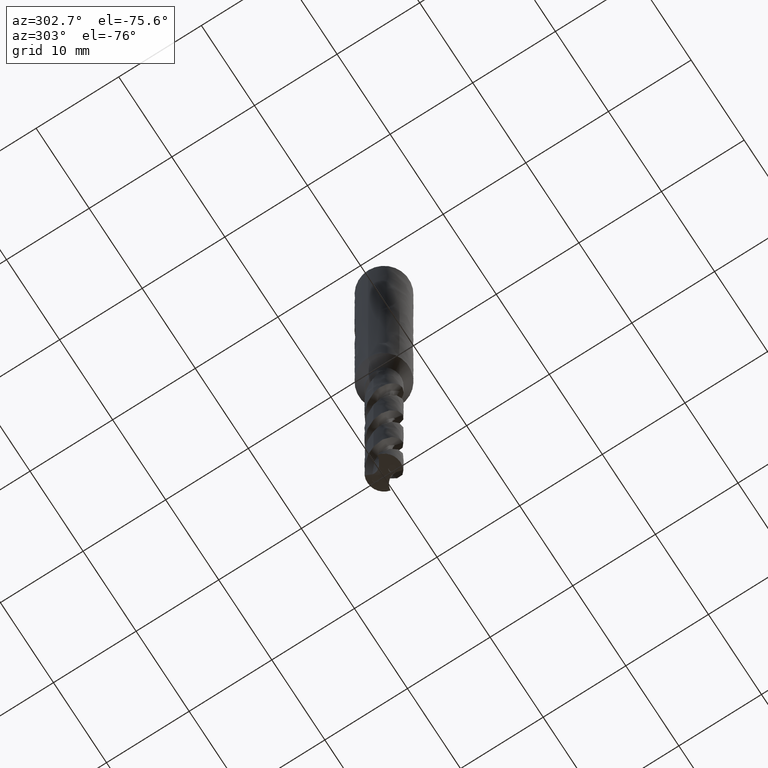
[diagram: clean part render]
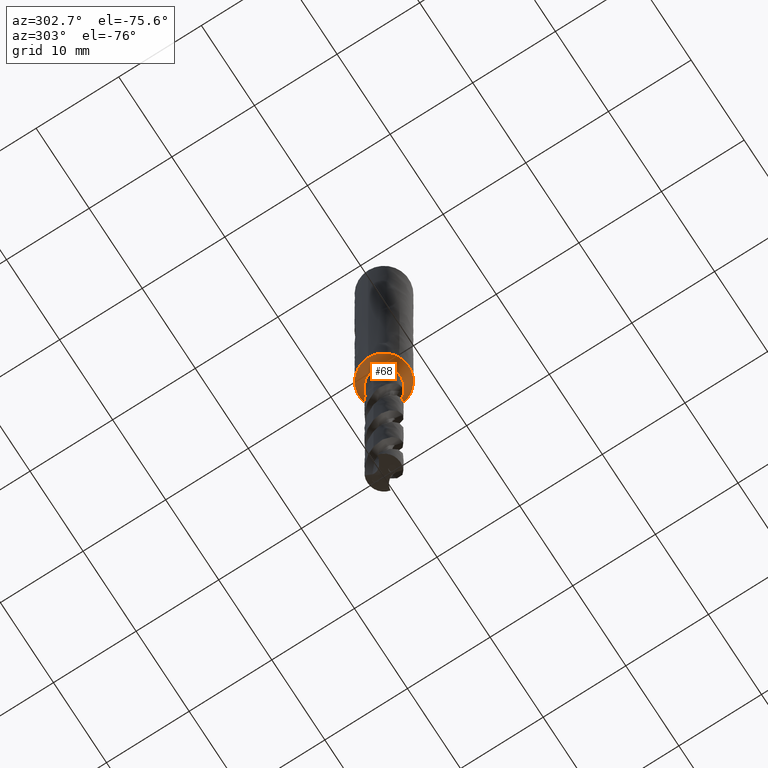
[diagram: same view with one face highlighted and labeled with its STEP entity id]
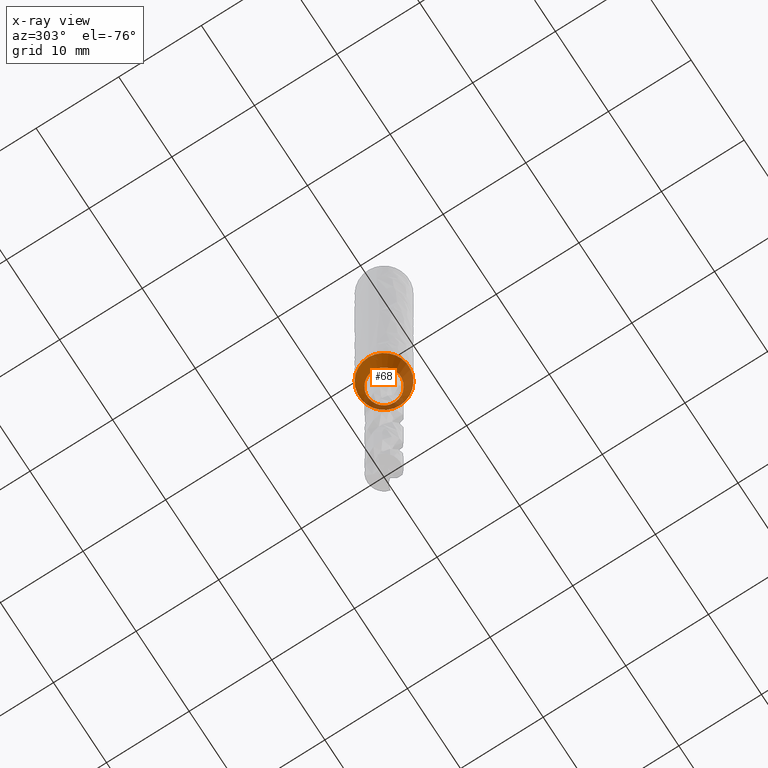
[diagram: x-ray of the same camera — body ghosted, the highlighted face saturated]
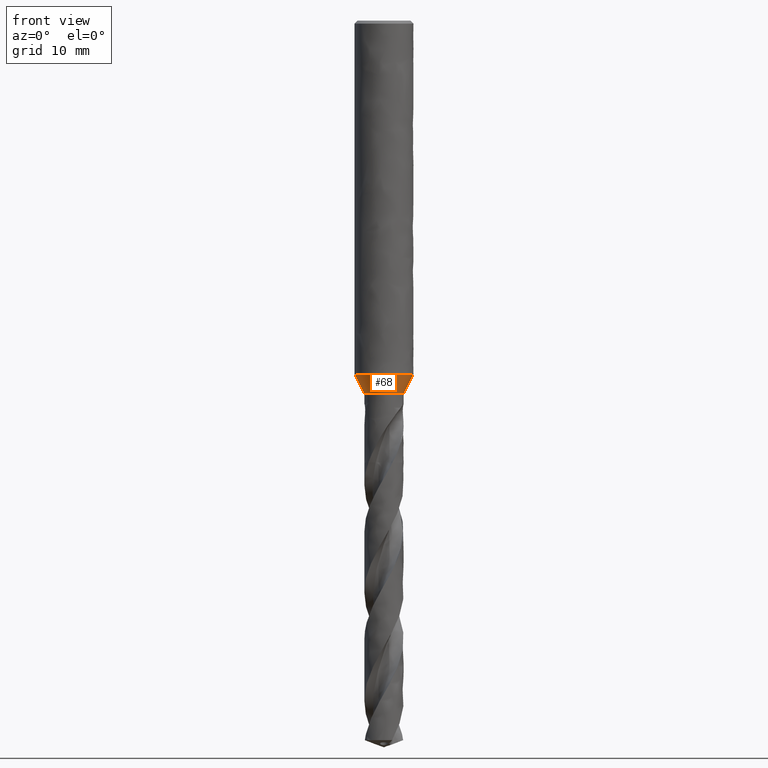
[diagram: same view with one face highlighted and labeled with its STEP entity id]
A machine part, auxiliary view. The second image highlights one B-rep face of the part: STEP entity #68.
The next image is the same camera in x-ray: the body ghosted, the highlighted face saturated — about 15% of this face is hidden behind the body in this view.
A second angle (front view) of the same face is appended — the face is thin or edge-on in the first view.
In plain terms, the highlighted face is a freeform B-spline surface patch.
Its self-contained STEP definition (entity closure, byte-faithful):
#68 = ADVANCED_FACE('', (#69), #96, .T.);
#69 = FACE_OUTER_BOUND('', #70, .T.);
#70 = EDGE_LOOP('', (#71, #81, #88, #89));
#71 = ORIENTED_EDGE('', *, *, #72, .F.);
#72 = EDGE_CURVE('', #73, #75, #77, .T.);
#73 = VERTEX_POINT('', #74);
#74 = CARTESIAN_POINT('', (-3., 2.38806125833734E-15, -36.));
#75 = VERTEX_POINT('', #76);
#76 = CARTESIAN_POINT('', (-2., 2.44929359829471E-15, -38.));
#77 = LINE('', #78, #79);
#78 = CARTESIAN_POINT('', (-3., 2.38806125833734E-15, -36.));
#79 = VECTOR('', #80, 2.23606797749979);
#80 = DIRECTION('', (1., 6.12323399573676E-17, -2.));
#81 = ORIENTED_EDGE('', *, *, #82, .T.);
#82 = EDGE_CURVE('', #73, #73, #83, .T.);
#83 = CIRCLE('', #84, 3.);
#84 = AXIS2_PLACEMENT_3D('', #85, #86, #87);
#85 = CARTESIAN_POINT('', (1.34978380439567E-31, 2.20436423846524E-15, -36.));
#86 = DIRECTION('', (3.74939945665464E-33, 6.12323399573677E-17, -1.));
#87 = DIRECTION('', (-1., 6.12323399573677E-17, 0.));
#88 = ORIENTED_EDGE('', *, *, #72, .T.);
#89 = ORIENTED_EDGE('', *, *, #90, .F.);
#90 = EDGE_CURVE('', #75, #75, #91, .T.);
#91 = CIRCLE('', #92, 2.);
#92 = AXIS2_PLACEMENT_3D('', #93, #94, #95);
#93 = CARTESIAN_POINT('', (1.42477179352876E-31, 2.32682891837997E-15, -38.));
#94 = DIRECTION('', (3.74939945665464E-33, 6.12323399573677E-17, -1.));
#95 = DIRECTION('', (-1., 6.12323399573677E-17, 0.));
#96 = (
   BOUNDED_SURFACE ()
   B_SPLINE_SURFACE (2, 1, ((#97, #98), (#99, #100), (#101, #102), (#103, #104), (#105, #106), (#107, #108), (#109, #110), (#111, #112), (#113, #114)), .UNSPECIFIED., .T., .F., .U.)
   B_SPLINE_SURFACE_WITH_KNOTS ((3, 2, 2, 2, 3), (2, 2), (0., 0.25, 0.5, 0.75, 1.), (0., 1.), .UNSPECIFIED.)
   GEOMETRIC_REPRESENTATION_ITEM ()
   RATIONAL_B_SPLINE_SURFACE (((1., 1.), (0.707106781186548, 0.707106781186548), (1., 1.), (0.707106781186548, 0.707106781186548), (1., 1.), (0.707106781186548, 0.707106781186548), (1., 1.), (0.707106781186548, 0.707106781186548), (1., 1.)))
   REPRESENTATION_ITEM ('')
   SURFACE ()
);
#97 = CARTESIAN_POINT('', (-3., 2.38806125833734E-15, -36.));
#98 = CARTESIAN_POINT('', (-2., 2.44929359829471E-15, -38.));
#99 = CARTESIAN_POINT('', (-3., 3., -36.));
#100 = CARTESIAN_POINT('', (-2., 2., -38.));
#101 = CARTESIAN_POINT('', (1.23259516440783E-31, 3., -36.));
#102 = CARTESIAN_POINT('', (1.4791141972894E-31, 2., -38.));
#103 = CARTESIAN_POINT('', (3., 3., -36.));
#104 = CARTESIAN_POINT('', (2., 2., -38.));
#105 = CARTESIAN_POINT('', (3., 2.38806125833734E-15, -36.));
#106 = CARTESIAN_POINT('', (2., 2.44929359829471E-15, -38.));
#107 = CARTESIAN_POINT('', (3., -3., -36.));
#108 = CARTESIAN_POINT('', (2., -2., -38.));
#109 = CARTESIAN_POINT('', (3.67394039744206E-16, -3., -36.));
#110 = CARTESIAN_POINT('', (2.44929359829471E-16, -2., -38.));
#111 = CARTESIAN_POINT('', (-3., -3., -36.));
#112 = CARTESIAN_POINT('', (-2., -2., -38.));
#113 = CARTESIAN_POINT('', (-3., 2.38806125833734E-15, -36.));
#114 = CARTESIAN_POINT('', (-2., 2.44929359829471E-15, -38.));